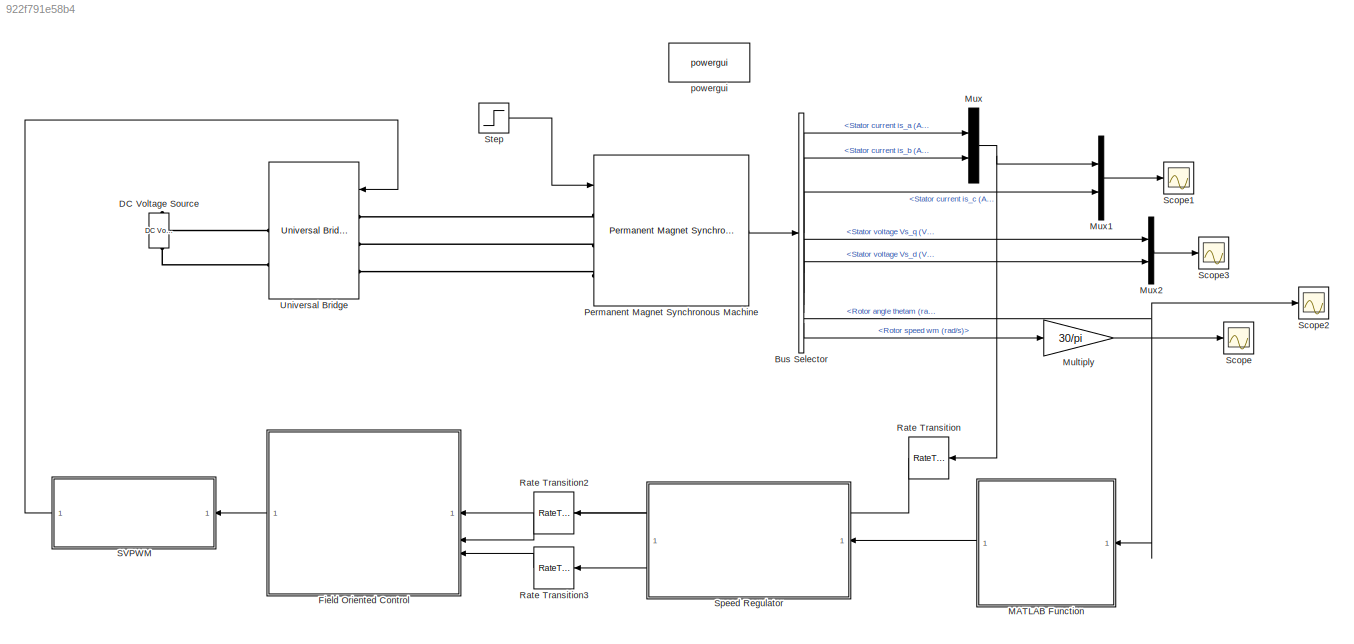
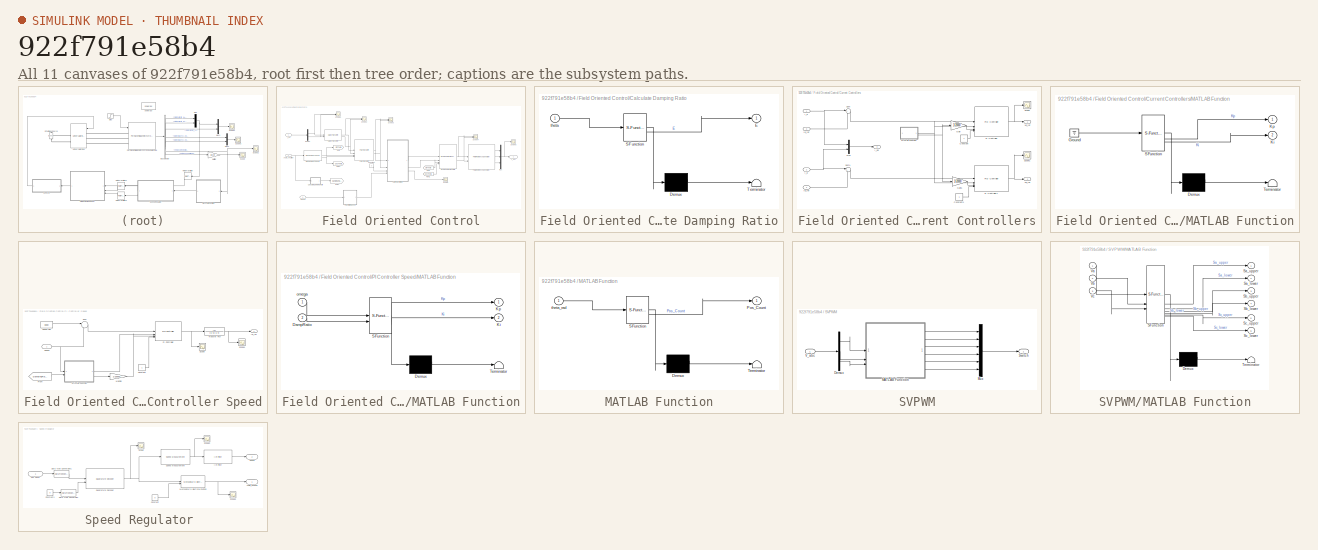
[diagram: thumbnail index - all 11 canvases of the model, root first then tree order]
MODEL slx_922f791e58b4
KIND model
CONFIG AbsTol = auto
CONFIG EnableMultiTasking = off
CONFIG FixedStep = auto
CONFIG MaxStep = auto
CONFIG MinStep = auto
CONFIG RelTol = 1e-3
CONFIG SampleTimeConstraint = Unconstrained
CONFIG SolverName = VariableStepAuto
CONFIG StartTime = 0.0
CONFIG StopTime = 20.0
BLOCK [BusSelector] Bus Selector
  OutputSignals = Stator current is_a (A),Stator current is_b (A),Stator current is_c (A),Stator voltage Vs_q (V),Stator voltage Vs_d (V),Rotor angle thetam (rad),Rotor speed wm (rad/s)
BLOCK [Reference] DC Voltage Source  REF=spsDCVoltageSourceLib/DC Voltage Source
  LibrarySourceBlock = sps_lib/Sources/DC Voltage Source
  SourceBlock = spsDCVoltageSourceLib/DC Voltage Source
  SourceType = DC Voltage Source
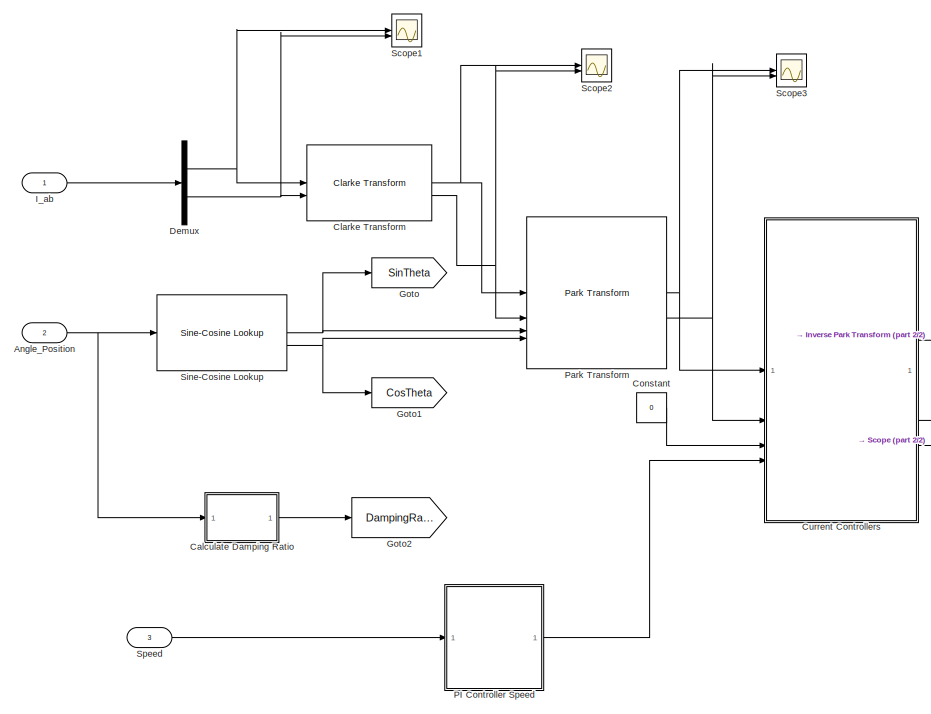
[diagram: Field Oriented Control - part 1/2, left side, full height]
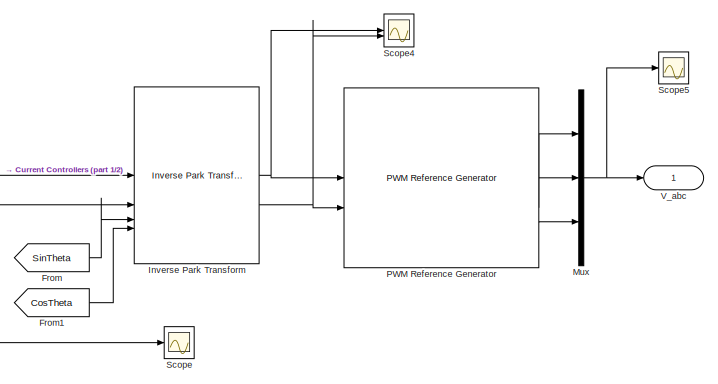
[diagram: Field Oriented Control - part 2/2, middle right region]
BLOCK [SubSystem] Field Oriented Control
BLOCK [Inport] Field Oriented Control/Angle_Position
  Port = 2
BLOCK [SubSystem] Field Oriented Control/Calculate Damping Ratio
  ErrorFcn = Stateflow.Translate.translate
  LibrarySourceBlock = simulink/User-Defined\nFunctions/MATLAB Function
  PermitHierarchicalResolution = ExplicitOnly
  SFBlockType = MATLAB Function
  TreatAsAtomicUnit = on
BLOCK [Demux] Field Oriented Control/Calculate Damping Ratio/ Demux 
  Outputs = 1
BLOCK [S-Function] Field Oriented Control/Calculate Damping Ratio/ SFunction 
  EnableBusSupport = on
  FunctionName = sf_sfun
  PortCounts = [1 2]
  SFcnIsStateOwnerBlock = off
  SFunctionDeploymentMode = off
  Tag = Stateflow S-Function 2
BLOCK [Terminator] Field Oriented Control/Calculate Damping Ratio/ Terminator 
BLOCK [Outport] Field Oriented Control/Calculate Damping Ratio/E
BLOCK [Inport] Field Oriented Control/Calculate Damping Ratio/theta
BLOCK [Reference] Field Oriented Control/Clarke Transform  REF=mcbcontrolslib/Clarke Transform
  LibrarySourceBlock = mcbhdllib/Controls/Math Transforms/Clarke Transform
  SourceBlock = mcbcontrolslib/Clarke Transform
  SourceType = Clarke Transform
BLOCK [Constant] Field Oriented Control/Constant
  Value = 0
BLOCK [SubSystem] Field Oriented Control/Current Controllers
BLOCK [Constant] Field Oriented Control/Current Controllers/Constant
BLOCK [Constant] Field Oriented Control/Current Controllers/Constant1
BLOCK [Gain] Field Oriented Control/Current Controllers/Gain
  Gain = 1/20000
BLOCK [Gain] Field Oriented Control/Current Controllers/Gain1
  Gain = 1/20000
BLOCK [Inport] Field Oriented Control/Current Controllers/I_d
BLOCK [Outport] Field Oriented Control/Current Controllers/I_dq
  Port = 3
BLOCK [Inport] Field Oriented Control/Current Controllers/I_q
  Port = 2
BLOCK [Inport] Field Oriented Control/Current Controllers/Id_ref
  Port = 3
BLOCK [Inport] Field Oriented Control/Current Controllers/Iq_ref
  Port = 4
BLOCK [SubSystem] Field Oriented Control/Current Controllers/MATLAB Function
  ErrorFcn = Stateflow.Translate.translate
  LibrarySourceBlock = simulink/User-Defined\nFunctions/MATLAB Function
  PermitHierarchicalResolution = ExplicitOnly
  SFBlockType = MATLAB Function
  TreatAsAtomicUnit = on
BLOCK [Demux] Field Oriented Control/Current Controllers/MATLAB Function/ Demux 
  Outputs = 1
BLOCK [Ground] Field Oriented Control/Current Controllers/MATLAB Function/ Ground 
BLOCK [S-Function] Field Oriented Control/Current Controllers/MATLAB Function/ SFunction 
  EnableBusSupport = on
  FunctionName = sf_sfun
  PortCounts = [1 3]
  SFcnIsStateOwnerBlock = off
  SFunctionDeploymentMode = off
  Tag = Stateflow S-Function 3
BLOCK [Terminator] Field Oriented Control/Current Controllers/MATLAB Function/ Terminator 
BLOCK [Outport] Field Oriented Control/Current Controllers/MATLAB Function/Ki
  Port = 2
BLOCK [Outport] Field Oriented Control/Current Controllers/MATLAB Function/Kp
BLOCK [Mux] Field Oriented Control/Current Controllers/Mux
  DisplayOption = bar
  Inputs = 2
BLOCK [Reference] Field Oriented Control/Current Controllers/PI Controller  REF=slpidlib/PID Controller
  LibrarySourceBlock = mcbhdllib/Controls/Controllers/PI Controller
  SourceBlock = slpidlib/PID Controller
  SourceType = PID 1dof
BLOCK [Reference] Field Oriented Control/Current Controllers/PI Controller1  REF=slpidlib/PID Controller
  LibrarySourceBlock = mcbhdllib/Controls/Controllers/PI Controller
  SourceBlock = slpidlib/PID Controller
  SourceType = PID 1dof
BLOCK [Scope] Field Oriented Control/Current Controllers/Scope
  Floating = off
  NumInputPorts = 1
  ScopeSpecificationString = Simulink.scopes.TimeScopeBlockCfg('CurrentConfiguration', extmgr.ConfigurationSet(extmgr.Configuration('Core','General UI',true),extmgr.Configuration('Core','Source UI',true),extmgr.Configuration('Sources','WiredSimulink',true,'DataLoggingVariableName','ScopeData2'),extmgr.Configuration('Visuals','Time Domain',true,'SerializedDisplays',{struct('MinYLimReal','-1.25','MaxYLimReal','0.59837','YLabelR...<+1408ch>
BLOCK [Scope] Field Oriented Control/Current Controllers/Scope1
  Floating = off
  NumInputPorts = 1
  ScopeSpecificationString = Simulink.scopes.TimeScopeBlockCfg('CurrentConfiguration', extmgr.ConfigurationSet(extmgr.Configuration('Core','General UI',true),extmgr.Configuration('Core','Source UI',true),extmgr.Configuration('Sources','WiredSimulink',true,'DataLoggingVariableName','ScopeData3'),extmgr.Configuration('Visuals','Time Domain',true,'SerializedDisplays',{struct('MinYLimReal','-1.25','MaxYLimReal','1.25','YLabelReal...<+1355ch>
BLOCK [Sum] Field Oriented Control/Current Controllers/Sum
  Inputs = |+-
BLOCK [Sum] Field Oriented Control/Current Controllers/Sum1
  Inputs = |+-
BLOCK [Outport] Field Oriented Control/Current Controllers/Vd_ref
BLOCK [Outport] Field Oriented Control/Current Controllers/Vq_ref
  Port = 2
BLOCK [Demux] Field Oriented Control/Demux
  Outputs = 2
BLOCK [From] Field Oriented Control/From
  GotoTag = SinTheta
BLOCK [From] Field Oriented Control/From1
  GotoTag = CosTheta
BLOCK [Goto] Field Oriented Control/Goto
  GotoTag = SinTheta
BLOCK [Goto] Field Oriented Control/Goto1
  GotoTag = CosTheta
BLOCK [Goto] Field Oriented Control/Goto2
  GotoTag = DampingRatio
  TagVisibility = global
BLOCK [Inport] Field Oriented Control/I_ab
BLOCK [Reference] Field Oriented Control/Inverse Park Transform  REF=mcbcontrolslib/Inverse Park Transform
  LibrarySourceBlock = mcbhdllib/Controls/Math Transforms/Inverse Park Transform
  SourceBlock = mcbcontrolslib/Inverse Park Transform
  SourceType = Inverse Park Transform
BLOCK [Mux] Field Oriented Control/Mux
  DisplayOption = bar
  Inputs = 3
BLOCK [SubSystem] Field Oriented Control/PI Controller Speed
BLOCK [Constant] Field Oriented Control/PI Controller Speed/Constant
BLOCK [From] Field Oriented Control/PI Controller Speed/From
  GotoTag = DampingRatio
  TagVisibility = global
BLOCK [Outport] Field Oriented Control/PI Controller Speed/Iq_ref
BLOCK [SubSystem] Field Oriented Control/PI Controller Speed/MATLAB Function
  ErrorFcn = Stateflow.Translate.translate
  LibrarySourceBlock = simulink/User-Defined\nFunctions/MATLAB Function
  PermitHierarchicalResolution = ExplicitOnly
  SFBlockType = MATLAB Function
  TreatAsAtomicUnit = on
BLOCK [Demux] Field Oriented Control/PI Controller Speed/MATLAB Function/ Demux 
  Outputs = 1
BLOCK [S-Function] Field Oriented Control/PI Controller Speed/MATLAB Function/ SFunction 
  EnableBusSupport = on
  FunctionName = sf_sfun
  PortCounts = [2 3]
  SFcnIsStateOwnerBlock = off
  SFunctionDeploymentMode = off
  Tag = Stateflow S-Function 1
BLOCK [Terminator] Field Oriented Control/PI Controller Speed/MATLAB Function/ Terminator 
BLOCK [Inport] Field Oriented Control/PI Controller Speed/MATLAB Function/DampRatio
  Port = 2
BLOCK [Outport] Field Oriented Control/PI Controller Speed/MATLAB Function/Ki
  Port = 2
BLOCK [Outport] Field Oriented Control/PI Controller Speed/MATLAB Function/Kp
BLOCK [Inport] Field Oriented Control/PI Controller Speed/MATLAB Function/omega
BLOCK [Gain] Field Oriented Control/PI Controller Speed/Multiply
  Gain = 1/20000
BLOCK [Reference] Field Oriented Control/PI Controller Speed/PI Controller  REF=slpidlib/PID Controller
  LibrarySourceBlock = mcbhdllib/Controls/Controllers/PI Controller
  SourceBlock = slpidlib/PID Controller
  SourceType = PID 1dof
BLOCK [Scope] Field Oriented Control/PI Controller Speed/Scope
  Floating = off
  NumInputPorts = 1
  ScopeSpecificationString = Simulink.scopes.TimeScopeBlockCfg('CurrentConfiguration', extmgr.ConfigurationSet(extmgr.Configuration('Core','General UI',true),extmgr.Configuration('Core','Source UI',true),extmgr.Configuration('Sources','WiredSimulink',true,'DataLoggingVariableName','ScopeData1'),extmgr.Configuration('Visuals','Time Domain',true,'SerializedDisplays',{struct('MinYLimReal','-1.25','MaxYLimReal','1.20759','YLabelR...<+1408ch>
BLOCK [Scope] Field Oriented Control/PI Controller Speed/Scope1
  Floating = off
  NumInputPorts = 1
  ScopeSpecificationString = Simulink.scopes.TimeScopeBlockCfg('CurrentConfiguration', extmgr.ConfigurationSet(extmgr.Configuration('Core','General UI',true),extmgr.Configuration('Core','Source UI',true),extmgr.Configuration('Sources','WiredSimulink',true,'DataLoggingVariableName','ScopeData3'),extmgr.Configuration('Visuals','Time Domain',true,'SerializedDisplays',{struct('MinYLimReal','-2.82452','MaxYLimReal','0.42347','YLab...<+1419ch>
BLOCK [Inport] Field Oriented Control/PI Controller Speed/Speed
BLOCK [Constant] Field Oriented Control/PI Controller Speed/Speed Ref
  SampleTime = -1
  Value = 3000
BLOCK [Sum] Field Oriented Control/PI Controller Speed/Sum
  Inputs = |+-
BLOCK [TransferFcn] Field Oriented Control/PI Controller Speed/Transfer Fcn
  Denominator = [0.42 0.4]
BLOCK [Reference] Field Oriented Control/PWM Reference Generator  REF=mcbcontrolslib/PWM Reference Generator
  LibrarySourceBlock = mcbhdllib/Controls/Math Transforms/PWM Reference Generator
  SourceBlock = mcbcontrolslib/PWM Reference Generator
  SourceType = PWM Modulation
BLOCK [Reference] Field Oriented Control/Park Transform  REF=mcbcontrolslib/Park Transform
  LibrarySourceBlock = mcbhdllib/Controls/Math Transforms/Park Transform
  SourceBlock = mcbcontrolslib/Park Transform
  SourceType = Park Transform
BLOCK [Scope] Field Oriented Control/Scope
  Floating = off
  NumInputPorts = 1
  ScopeSpecificationString = Simulink.scopes.TimeScopeBlockCfg('CurrentConfiguration', extmgr.ConfigurationSet(extmgr.Configuration('Core','General UI',true),extmgr.Configuration('Core','Source UI',true),extmgr.Configuration('Sources','WiredSimulink',true,'DataLoggingVariableName','ScopeData1'),extmgr.Configuration('Visuals','Time Domain',true,'SerializedDisplays',{struct('MinYLimReal','-7.46891','MaxYLimReal','7.46291','YLab...<+1456ch>
BLOCK [Scope] Field Oriented Control/Scope1
  Floating = off
  NumInputPorts = 2
  ScopeSpecificationString = Simulink.scopes.TimeScopeBlockCfg('CurrentConfiguration', extmgr.ConfigurationSet(extmgr.Configuration('Core','General UI',true),extmgr.Configuration('Core','Source UI',true),extmgr.Configuration('Sources','WiredSimulink',true,'DataLoggingVariableName','ScopeData4'),extmgr.Configuration('Visuals','Time Domain',true,'SerializedDisplays',{struct('MinYLimReal','-7.4722','MaxYLimReal','7.46353','YLabe...<+1372ch>
BLOCK [Scope] Field Oriented Control/Scope2
  Floating = off
  NumInputPorts = 2
  ScopeSpecificationString = Simulink.scopes.TimeScopeBlockCfg('CurrentConfiguration', extmgr.ConfigurationSet(extmgr.Configuration('Core','General UI',true),extmgr.Configuration('Core','Source UI',true),extmgr.Configuration('Sources','WiredSimulink',true,'DataLoggingVariableName','ScopeData5'),extmgr.Configuration('Visuals','Time Domain',true,'SerializedDisplays',{struct('MinYLimReal','-6.09836','MaxYLimReal','7.4014','YLabe...<+1442ch>
BLOCK [Scope] Field Oriented Control/Scope3
  Floating = off
  NumInputPorts = 2
  ScopeSpecificationString = Simulink.scopes.TimeScopeBlockCfg('CurrentConfiguration', extmgr.ConfigurationSet(extmgr.Configuration('Core','General UI',true),extmgr.Configuration('Core','Source UI',true),extmgr.Configuration('Sources','WiredSimulink',true,'DataLoggingVariableName','ScopeData6'),extmgr.Configuration('Visuals','Time Domain',true,'SerializedDisplays',{struct('MinYLimReal','-3.04375','MaxYLimReal','7.00543','YLab...<+1442ch>
BLOCK [Scope] Field Oriented Control/Scope4
  Floating = off
  NumInputPorts = 2
  ScopeSpecificationString = Simulink.scopes.TimeScopeBlockCfg('CurrentConfiguration', extmgr.ConfigurationSet(extmgr.Configuration('Core','General UI',true),extmgr.Configuration('Core','Source UI',true),extmgr.Configuration('Sources','WiredSimulink',true,'DataLoggingVariableName','ScopeData11'),extmgr.Configuration('Visuals','Time Domain',true,'SerializedDisplays',{struct('MinYLimReal','-1.57377','MaxYLimReal','1.49254','YLa...<+1459ch>
BLOCK [Scope] Field Oriented Control/Scope5
  Floating = off
  NumInputPorts = 1
  ScopeSpecificationString = Simulink.scopes.TimeScopeBlockCfg('CurrentConfiguration', extmgr.ConfigurationSet(extmgr.Configuration('Core','General UI',true),extmgr.Configuration('Core','Source UI',true),extmgr.Configuration('Sources','WiredSimulink',true,'DataLoggingVariableName','ScopeData1'),extmgr.Configuration('Visuals','Time Domain',true,'SerializedDisplays',{struct('MinYLimReal','-1.76777','MaxYLimReal','1.59729','YLab...<+1488ch>
BLOCK [Reference] Field Oriented Control/Sine-Cosine Lookup  REF=mcbcontrolslib/Sine-Cosine Lookup
  LibrarySourceBlock = mcblib/Controls/Math Transforms/Sine-Cosine Lookup
  SourceBlock = mcbcontrolslib/Sine-Cosine Lookup
  SourceType = Sine-Cosine Lookup
BLOCK [Inport] Field Oriented Control/Speed
  Port = 3
BLOCK [Outport] Field Oriented Control/V_abc
BLOCK [SubSystem] MATLAB Function
  ErrorFcn = Stateflow.Translate.translate
  LibrarySourceBlock = simulink/User-Defined\nFunctions/MATLAB Function
  PermitHierarchicalResolution = ExplicitOnly
  SFBlockType = MATLAB Function
  TreatAsAtomicUnit = on
BLOCK [Demux] MATLAB Function/ Demux 
  Outputs = 1
BLOCK [S-Function] MATLAB Function/ SFunction 
  EnableBusSupport = on
  FunctionName = sf_sfun
  PortCounts = [1 2]
  SFcnIsStateOwnerBlock = off
  SFunctionDeploymentMode = off
  Tag = Stateflow S-Function 5
BLOCK [Terminator] MATLAB Function/ Terminator 
BLOCK [Outport] MATLAB Function/Pos_Count
BLOCK [Inport] MATLAB Function/theta_rad
BLOCK [Gain] Multiply
  Gain = 30/pi
BLOCK [Mux] Mux
  DisplayOption = bar
  Inputs = 2
BLOCK [Mux] Mux1
  DisplayOption = bar
  Inputs = 2
BLOCK [Mux] Mux2
  DisplayOption = bar
  Inputs = 2
BLOCK [Reference] Permanent Magnet Synchronous Machine  REF=spsPermanentMagnetSynchronousMachineLib/Permanent Magnet
Synchronous Machine
  LibrarySourceBlock = sps_lib/Electrical Machines/Permanent Magnet\nSynchronous Machine
  SourceBlock = spsPermanentMagnetSynchronousMachineLib/Permanent Magnet\nSynchronous Machine
  SourceType = Permanent Magnet Synchronous Machine
BLOCK [RateTransition] Rate Transition
BLOCK [RateTransition] Rate Transition2
BLOCK [RateTransition] Rate Transition3
BLOCK [SubSystem] SVPWM
BLOCK [Demux] SVPWM/Demux
  Outputs = 3
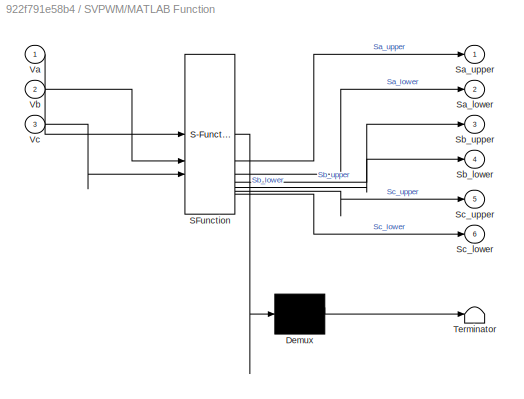
BLOCK [SubSystem] SVPWM/MATLAB Function
  ErrorFcn = Stateflow.Translate.translate
  LibrarySourceBlock = simulink/User-Defined\nFunctions/MATLAB Function
  PermitHierarchicalResolution = ExplicitOnly
  SFBlockType = MATLAB Function
  TreatAsAtomicUnit = on
BLOCK [Demux] SVPWM/MATLAB Function/ Demux 
  Outputs = 1
BLOCK [S-Function] SVPWM/MATLAB Function/ SFunction 
  EnableBusSupport = on
  FunctionName = sf_sfun
  PortCounts = [3 7]
  SFcnIsStateOwnerBlock = off
  SFunctionDeploymentMode = off
  Tag = Stateflow S-Function 4
BLOCK [Terminator] SVPWM/MATLAB Function/ Terminator 
BLOCK [Outport] SVPWM/MATLAB Function/Sa_lower
  Port = 2
BLOCK [Outport] SVPWM/MATLAB Function/Sa_upper
BLOCK [Outport] SVPWM/MATLAB Function/Sb_lower
  Port = 4
BLOCK [Outport] SVPWM/MATLAB Function/Sb_upper
  Port = 3
BLOCK [Outport] SVPWM/MATLAB Function/Sc_lower
  Port = 6
BLOCK [Outport] SVPWM/MATLAB Function/Sc_upper
  Port = 5
BLOCK [Inport] SVPWM/MATLAB Function/Va
BLOCK [Inport] SVPWM/MATLAB Function/Vb
  Port = 2
BLOCK [Inport] SVPWM/MATLAB Function/Vc
  Port = 3
BLOCK [Mux] SVPWM/Mux
  DisplayOption = bar
  Inputs = 6
BLOCK [Outport] SVPWM/Switch
BLOCK [Inport] SVPWM/V_abc
BLOCK [Scope] Scope
  Floating = off
  NumInputPorts = 1
  ScopeSpecificationString = Simulink.scopes.TimeScopeBlockCfg('CurrentConfiguration', extmgr.ConfigurationSet(extmgr.Configuration('Core','General UI',true),extmgr.Configuration('Core','Source UI',true),extmgr.Configuration('Sources','WiredSimulink',true),extmgr.Configuration('Visuals','Time Domain',true,'SerializedDisplays',{struct('MinYLimReal','-180.01542','MaxYLimReal','123.18223','YLabelReal','','MinYLimMag',' 0.00000',...<+1415ch>
BLOCK [Scope] Scope1
  Floating = off
  NumInputPorts = 1
  ScopeSpecificationString = Simulink.scopes.TimeScopeBlockCfg('CurrentConfiguration', extmgr.ConfigurationSet(extmgr.Configuration('Core','General UI',true,'FigureColor',[1 1 1]),extmgr.Configuration('Core','Source UI',true),extmgr.Configuration('Sources','WiredSimulink',true,'DataLoggingVariableName','ScopeData1'),extmgr.Configuration('Visuals','Time Domain',true,'SerializedDisplays',{struct('MinYLimReal','-7.77003','MaxYLi...<+1611ch>
BLOCK [Scope] Scope2
  Floating = off
  NumInputPorts = 1
  ScopeSpecificationString = Simulink.scopes.TimeScopeBlockCfg('CurrentConfiguration', extmgr.ConfigurationSet(extmgr.Configuration('Core','General UI',true),extmgr.Configuration('Core','Source UI',true),extmgr.Configuration('Sources','WiredSimulink',true,'DataLoggingVariableName','ScopeData7'),extmgr.Configuration('Visuals','Time Domain',true,'SerializedDisplays',{struct('MinYLimReal','-1947.71284','MaxYLimReal','216.41254',...<+1434ch>
BLOCK [Scope] Scope3
  Floating = off
  NumInputPorts = 1
  ScopeSpecificationString = Simulink.scopes.TimeScopeBlockCfg('CurrentConfiguration', extmgr.ConfigurationSet(extmgr.Configuration('Core','General UI',true),extmgr.Configuration('Core','Source UI',true),extmgr.Configuration('Sources','WiredSimulink',true,'DataLoggingVariableName','ScopeData2'),extmgr.Configuration('Visuals','Time Domain',true,'SerializedDisplays',{struct('MinYLimReal','-0.00271','MaxYLimReal','0.00362','YLab...<+1460ch>
BLOCK [SubSystem] Speed Regulator 
BLOCK [Outport] Speed Regulator /Angle_Position
BLOCK [Constant] Speed Regulator /Constant
  SampleTime = -1
  Value = 0
BLOCK [Constant] Speed Regulator /Constant1
  SampleTime = -1
  Value = 0
BLOCK [DataTypeConversion] Speed Regulator /Data Type Conversion
  OutDataTypeStr = uint16
  RndMeth = Floor
  SaturateOnIntegerOverflow = off
BLOCK [DataTypeConversion] Speed Regulator /Data Type Conversion1
  OutDataTypeStr = uint16
  RndMeth = Floor
  SaturateOnIntegerOverflow = off
BLOCK [Reference] Speed Regulator /IIR Filter  REF=mcbcontrolslib/IIR Filter
  LibrarySourceBlock = mcblib/Signal Management/IIR Filter
  SourceBlock = mcbcontrolslib/IIR Filter
  SourceType = IIR Filter
BLOCK [Reference] Speed Regulator /Mechanical to Electrical Position  REF=mcbhdlpositiondecoderlib/Mechanical to Electrical Position
  LibrarySourceBlock = mcbhdllib/Sensor Decoders/Mechanical to Electrical Position
  SourceBlock = mcbhdlpositiondecoderlib/Mechanical to Electrical Position
  SourceType = Mechanical to Electrical Position
BLOCK [Inport] Speed Regulator /Pos Count
BLOCK [Reference] Speed Regulator /Quadrature Decoder  REF=mcbpositiondecoderlib/Quadrature Decoder
  LibrarySourceBlock = mcbhdllib/Sensor Decoders/Quadrature Decoder
  SourceBlock = mcbpositiondecoderlib/Quadrature Decoder
  SourceType = Quadrature Decoder
BLOCK [Scope] Speed Regulator /Scope
  Floating = off
  NumInputPorts = 1
  ScopeSpecificationString = Simulink.scopes.TimeScopeBlockCfg('CurrentConfiguration', extmgr.ConfigurationSet(extmgr.Configuration('Core','General UI',true),extmgr.Configuration('Core','Source UI',true),extmgr.Configuration('Sources','WiredSimulink',true,'DataLoggingVariableName','ScopeData8'),extmgr.Configuration('Visuals','Time Domain',true,'SerializedDisplays',{struct('MinYLimReal','-0.80425','MaxYLimReal','7.23823','YLab...<+1425ch>
BLOCK [Scope] Speed Regulator /Scope1
  Floating = off
  NumInputPorts = 1
  ScopeSpecificationString = Simulink.scopes.TimeScopeBlockCfg('CurrentConfiguration', extmgr.ConfigurationSet(extmgr.Configuration('Core','General UI',true),extmgr.Configuration('Core','Source UI',true),extmgr.Configuration('Sources','WiredSimulink',true,'DataLoggingVariableName','ScopeData9'),extmgr.Configuration('Visuals','Time Domain',true,'SerializedDisplays',{struct('MinYLimReal','-0.7852','MaxYLimReal','7.06682','YLabe...<+1463ch>
BLOCK [Scope] Speed Regulator /Scope2
  Floating = off
  NumInputPorts = 1
  ScopeSpecificationString = Simulink.scopes.TimeScopeBlockCfg('CurrentConfiguration', extmgr.ConfigurationSet(extmgr.Configuration('Core','General UI',true),extmgr.Configuration('Core','Source UI',true),extmgr.Configuration('Sources','WiredSimulink',true,'DataLoggingVariableName','ScopeData10'),extmgr.Configuration('Visuals','Time Domain',true,'SerializedDisplays',{struct('MinYLimReal','-305.4617','MaxYLimReal','20.3667','YL...<+1431ch>
BLOCK [Outport] Speed Regulator /Speed
  Port = 2
BLOCK [Reference] Speed Regulator /Speed Measurement  REF=mcbpositiondecoderlib/Speed Measurement
  LibrarySourceBlock = mcbhdllib/Sensor Decoders/Speed Measurement
  SourceBlock = mcbpositiondecoderlib/Speed Measurement
  SourceType = Speed Measurement
BLOCK [Step] Step
  After = 5
  SampleTime = 0
BLOCK [Reference] Universal Bridge  REF=spsUniversalBridgeLib/Universal Bridge
  LibrarySourceBlock = sps_lib/Power Electronics/Universal Bridge
  SourceBlock = spsUniversalBridgeLib/Universal Bridge
  SourceType = Universal Bridge
BLOCK [Reference] powergui  REF=sps_lib/powergui
  Priority = 1
  SourceBlock = sps_lib/powergui
  SourceType = PSB option menu block
LINE Bus Selector:1 -> Mux:1
LINE Bus Selector:2 -> Mux:2
LINE Bus Selector:3 -> Mux1:2
LINE Bus Selector:4 -> Mux2:1
LINE Bus Selector:5 -> Mux2:2
NET Bus Selector:6 -> MATLAB Function:1, Scope2:1
LINE Bus Selector:7 -> Multiply:1
NET Field Oriented Control/Angle_Position:1 -> Field Oriented Control/Calculate Damping Ratio:1, Field Oriented Control/Sine-Cosine Lookup:1
LINE Field Oriented Control/Calculate Damping Ratio:1 -> Field Oriented Control/Goto2:1
NET Field Oriented Control/Clarke Transform:1 -> Field Oriented Control/Park Transform:1, Field Oriented Control/Scope2:1
NET Field Oriented Control/Clarke Transform:2 -> Field Oriented Control/Park Transform:2, Field Oriented Control/Scope2:2
LINE Field Oriented Control/Constant:1 -> Field Oriented Control/Current Controllers:3
LINE Field Oriented Control/Current Controllers/Constant1:1 -> Field Oriented Control/Current Controllers/PI Controller1:4
LINE Field Oriented Control/Current Controllers/Constant:1 -> Field Oriented Control/Current Controllers/PI Controller:4
LINE Field Oriented Control/Current Controllers/Gain1:1 -> Field Oriented Control/Current Controllers/PI Controller1:3
LINE Field Oriented Control/Current Controllers/Gain:1 -> Field Oriented Control/Current Controllers/PI Controller:3
NET Field Oriented Control/Current Controllers/I_d:1 -> Field Oriented Control/Current Controllers/Mux:1, Field Oriented Control/Current Controllers/Sum:1
NET Field Oriented Control/Current Controllers/I_q:1 -> Field Oriented Control/Current Controllers/Mux:2, Field Oriented Control/Current Controllers/Sum1:1
LINE Field Oriented Control/Current Controllers/Id_ref:1 -> Field Oriented Control/Current Controllers/Sum:2
LINE Field Oriented Control/Current Controllers/Iq_ref:1 -> Field Oriented Control/Current Controllers/Sum1:2
NET Field Oriented Control/Current Controllers/MATLAB Function:1 -> Field Oriented Control/Current Controllers/PI Controller1:2, Field Oriented Control/Current Controllers/PI Controller:2
NET Field Oriented Control/Current Controllers/MATLAB Function:2 -> Field Oriented Control/Current Controllers/Gain1:1, Field Oriented Control/Current Controllers/Gain:1
LINE Field Oriented Control/Current Controllers/Mux:1 -> Field Oriented Control/Current Controllers/I_dq:1
NET Field Oriented Control/Current Controllers/PI Controller1:1 -> Field Oriented Control/Current Controllers/Scope1:1, Field Oriented Control/Current Controllers/Vq_ref:1
NET Field Oriented Control/Current Controllers/PI Controller:1 -> Field Oriented Control/Current Controllers/Scope:1, Field Oriented Control/Current Controllers/Vd_ref:1
LINE Field Oriented Control/Current Controllers/Sum1:1 -> Field Oriented Control/Current Controllers/PI Controller1:1
LINE Field Oriented Control/Current Controllers/Sum:1 -> Field Oriented Control/Current Controllers/PI Controller:1
LINE Field Oriented Control/Current Controllers:1 -> Field Oriented Control/Inverse Park Transform:1
LINE Field Oriented Control/Current Controllers:2 -> Field Oriented Control/Inverse Park Transform:2
LINE Field Oriented Control/Current Controllers:3 -> Field Oriented Control/Scope:1
NET Field Oriented Control/Demux:1 -> Field Oriented Control/Clarke Transform:1, Field Oriented Control/Scope1:1
NET Field Oriented Control/Demux:2 -> Field Oriented Control/Clarke Transform:2, Field Oriented Control/Scope1:2
LINE Field Oriented Control/From1:1 -> Field Oriented Control/Inverse Park Transform:4
LINE Field Oriented Control/From:1 -> Field Oriented Control/Inverse Park Transform:3
LINE Field Oriented Control/I_ab:1 -> Field Oriented Control/Demux:1
NET Field Oriented Control/Inverse Park Transform:1 -> Field Oriented Control/PWM Reference Generator:1, Field Oriented Control/Scope4:1
NET Field Oriented Control/Inverse Park Transform:2 -> Field Oriented Control/PWM Reference Generator:2, Field Oriented Control/Scope4:2
NET Field Oriented Control/Mux:1 -> Field Oriented Control/Scope5:1, Field Oriented Control/V_abc:1
LINE Field Oriented Control/PI Controller Speed/Constant:1 -> Field Oriented Control/PI Controller Speed/PI Controller:4
LINE Field Oriented Control/PI Controller Speed/From:1 -> Field Oriented Control/PI Controller Speed/MATLAB Function:2
LINE Field Oriented Control/PI Controller Speed/MATLAB Function:1 -> Field Oriented Control/PI Controller Speed/PI Controller:2
LINE Field Oriented Control/PI Controller Speed/MATLAB Function:2 -> Field Oriented Control/PI Controller Speed/Multiply:1
LINE Field Oriented Control/PI Controller Speed/Multiply:1 -> Field Oriented Control/PI Controller Speed/PI Controller:3
NET Field Oriented Control/PI Controller Speed/PI Controller:1 -> Field Oriented Control/PI Controller Speed/Scope:1, Field Oriented Control/PI Controller Speed/Transfer Fcn:1
LINE Field Oriented Control/PI Controller Speed/Speed Ref:1 -> Field Oriented Control/PI Controller Speed/Sum:1
NET Field Oriented Control/PI Controller Speed/Speed:1 -> Field Oriented Control/PI Controller Speed/MATLAB Function:1, Field Oriented Control/PI Controller Speed/Sum:2
LINE Field Oriented Control/PI Controller Speed/Sum:1 -> Field Oriented Control/PI Controller Speed/PI Controller:1
NET Field Oriented Control/PI Controller Speed/Transfer Fcn:1 -> Field Oriented Control/PI Controller Speed/Iq_ref:1, Field Oriented Control/PI Controller Speed/Scope1:1
LINE Field Oriented Control/PI Controller Speed:1 -> Field Oriented Control/Current Controllers:4
LINE Field Oriented Control/PWM Reference Generator:1 -> Field Oriented Control/Mux:1
LINE Field Oriented Control/PWM Reference Generator:2 -> Field Oriented Control/Mux:2
LINE Field Oriented Control/PWM Reference Generator:3 -> Field Oriented Control/Mux:3
NET Field Oriented Control/Park Transform:1 -> Field Oriented Control/Current Controllers:1, Field Oriented Control/Scope3:1
NET Field Oriented Control/Park Transform:2 -> Field Oriented Control/Current Controllers:2, Field Oriented Control/Scope3:2
NET Field Oriented Control/Sine-Cosine Lookup:1 -> Field Oriented Control/Goto:1, Field Oriented Control/Park Transform:3
NET Field Oriented Control/Sine-Cosine Lookup:2 -> Field Oriented Control/Goto1:1, Field Oriented Control/Park Transform:4
LINE Field Oriented Control/Speed:1 -> Field Oriented Control/PI Controller Speed:1
LINE Field Oriented Control:1 -> SVPWM:1
LINE MATLAB Function:1 -> Speed Regulator :1
LINE Multiply:1 -> Scope:1
LINE Mux1:1 -> Scope1:1
LINE Mux2:1 -> Scope3:1
NET Mux:1 -> Mux1:1, Rate Transition:1
LINE Permanent Magnet Synchronous Machine:1 -> Bus Selector:1
LINE Rate Transition2:1 -> Field Oriented Control:2
LINE Rate Transition3:1 -> Field Oriented Control:3
LINE Rate Transition:1 -> Field Oriented Control:1
LINE SVPWM/Demux:1 -> SVPWM/MATLAB Function:1
LINE SVPWM/Demux:2 -> SVPWM/MATLAB Function:2
LINE SVPWM/Demux:3 -> SVPWM/MATLAB Function:3
LINE SVPWM/MATLAB Function:1 -> SVPWM/Mux:1
LINE SVPWM/MATLAB Function:2 -> SVPWM/Mux:2
LINE SVPWM/MATLAB Function:3 -> SVPWM/Mux:3
LINE SVPWM/MATLAB Function:4 -> SVPWM/Mux:4
LINE SVPWM/MATLAB Function:5 -> SVPWM/Mux:5
LINE SVPWM/MATLAB Function:6 -> SVPWM/Mux:6
LINE SVPWM/Mux:1 -> SVPWM/Switch:1
LINE SVPWM/V_abc:1 -> SVPWM/Demux:1
LINE SVPWM:1 -> Universal Bridge:1
LINE Speed Regulator /Constant1:1 -> Speed Regulator /Data Type Conversion:1
LINE Speed Regulator /Constant:1 -> Speed Regulator /Mechanical to Electrical Position:2
LINE Speed Regulator /Data Type Conversion1:1 -> Speed Regulator /Quadrature Decoder:1
LINE Speed Regulator /Data Type Conversion:1 -> Speed Regulator /Quadrature Decoder:2
LINE Speed Regulator /IIR Filter:1 -> Speed Regulator /Speed:1
NET Speed Regulator /Mechanical to Electrical Position:1 -> Speed Regulator /Angle_Position:1, Speed Regulator /Scope1:1
LINE Speed Regulator /Pos Count:1 -> Speed Regulator /Data Type Conversion1:1
NET Speed Regulator /Quadrature Decoder:1 -> Speed Regulator /Mechanical to Electrical Position:1, Speed Regulator /Scope:1, Speed Regulator /Speed Measurement:1
NET Speed Regulator /Speed Measurement:1 -> Speed Regulator /IIR Filter:1, Speed Regulator /Scope2:1
LINE Speed Regulator :1 -> Rate Transition2:1
LINE Speed Regulator :2 -> Rate Transition3:1
LINE Step:1 -> Permanent Magnet Synchronous Machine:1
PLINE DC Voltage Source:LConn1 -- Universal Bridge:RConn2
PLINE DC Voltage Source:RConn1 -- Universal Bridge:RConn1
PLINE Permanent Magnet Synchronous Machine:LConn1 -- Universal Bridge:LConn1
PLINE Permanent Magnet Synchronous Machine:LConn2 -- Universal Bridge:LConn2
PLINE Permanent Magnet Synchronous Machine:LConn3 -- Universal Bridge:LConn3
note: NET lines group one-source signal fan-out (src -> all destinations, sorted); 1:1 wires keep LINE
CHART Field Oriented Control/PI Controller Speed/MATLAB Function states=1 transitions=1
  STATE_LABEL 'eML_blk_kernel()'
  STATE_LABEL 'SCRIPT:\nfunction [Kp,Ki] = fcn(omega,DampRatio)\n\nJ = 0.42;\n\nB = 0.4; \n\nKp = 2 * DampRatio * omega * J * B;\n\nKi = J * omega;\n'
CHART Field Oriented Control/Calculate Damping Ratio states=1 transitions=1
  STATE_LABEL 'eML_blk_kernel()'
  STATE_LABEL 'SCRIPT:\nfunction E = fcn(theta)\n\nE = sqrt(1 / ((tan(theta)^2 + 1)));\n'
CHART Field Oriented Control/Current Controllers/MATLAB Function states=1 transitions=1
  STATE_LABEL 'eML_blk_kernel()'
  STATE_LABEL 'SCRIPT:\nfunction [Kp, Ki] = fcn()\n\n%Khai báo constant\n\nL = 0.02;\n\nR = 0.1051;\n\nf = 20000;\n\nw0 = 2*pi*f;\n\nzeta = 1;\n\nKp = 2*zeta*w0*(L-R);\n\nKi = Kp*(L*w0^2);\n\n\n\n'
CHART SVPWM/MATLAB Function states=1 transitions=1
  STATE_LABEL 'eML_blk_kernel()'
  STATE_LABEL 'SCRIPT:\nfunction [Sa_upper, Sa_lower, Sb_upper, Sb_lower, Sc_upper, Sc_lower]  = fcn(Va, Vb, Vc)\n\n%Deadtime = 0;\nTs = 1/20000;\nVdc = 48;\n\n\n% Biến đổi Clarke: abc -> alpha-beta\nValpha = (2/3) * (Va - 0.5*Vb - 0.5*Vc);\nVbeta = (2/3) * (0.866*Vb - 0.866*Vc);\n\n% Tính góc và biên độ vector điện áp tham chiếu\ntheta = atan2(Vbeta, Valpha);\nif theta < 0\n    theta = theta + 2*pi;\nend\n\nVref = sqrt(Valpha^2 ...<+2275ch>'
CHART MATLAB Function states=1 transitions=1
  STATE_LABEL 'eML_blk_kernel()'
  STATE_LABEL 'SCRIPT:\nfunction Pos_Count = fcn(theta_rad)\n\nCountsPerRev = 4096;  % số xung encoder trên một vòng (CPR)\n\ntheta_mod = mod(theta_rad, 2*pi);\n\n% Tính số count\ncount_float = (theta_mod / (2*pi)) * CountsPerRev;\n\n% Làm tròn và ép kiểu về uint16\nPos_Count = uint16(round(count_float));\n\nend\n'
CHART  states=0 transitions=0
CHART  states=0 transitions=0
CHART  states=0 transitions=0
CHART  states=0 transitions=0
CHART  states=0 transitions=0
